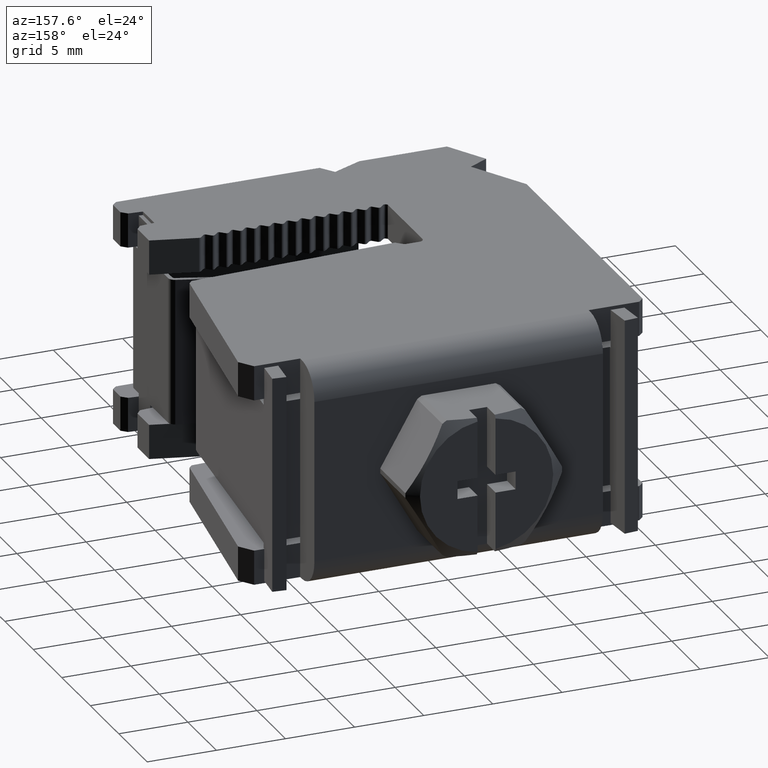
[diagram: clean part render]
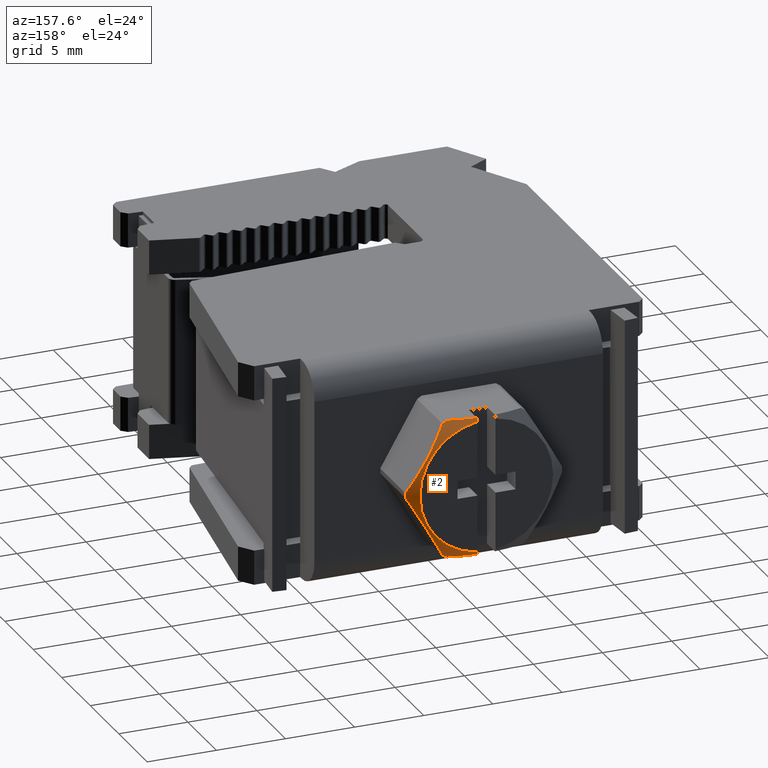
[diagram: same view with one face highlighted and labeled with its STEP entity id]
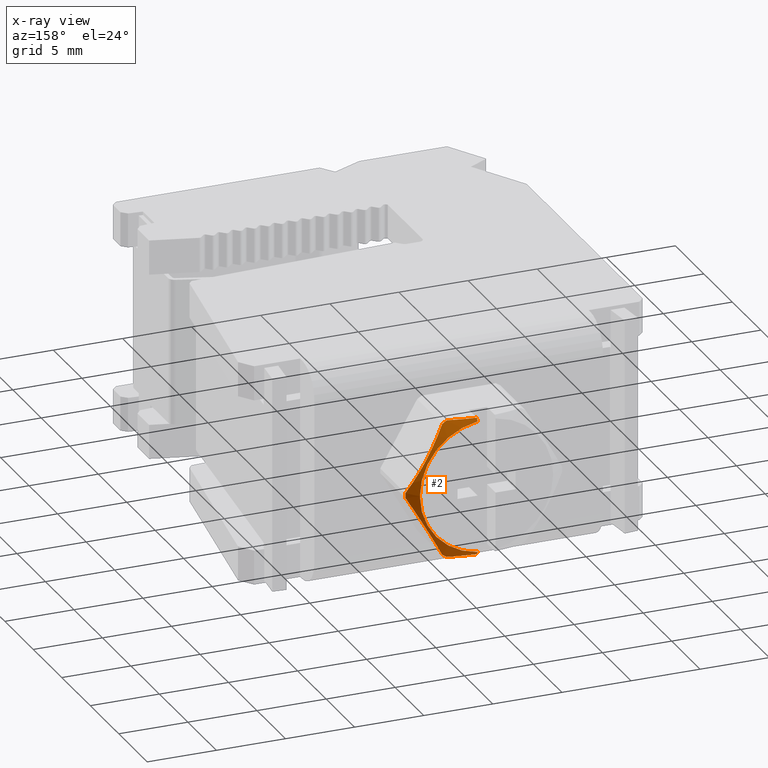
[diagram: x-ray of the same camera — body ghosted, the highlighted face saturated]
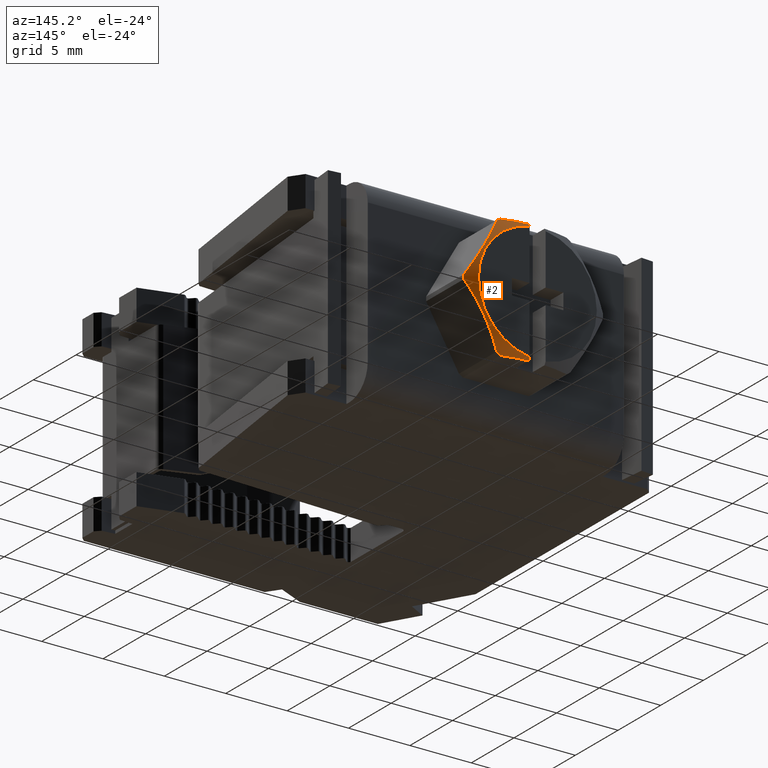
[diagram: same view with one face highlighted and labeled with its STEP entity id]
A machine part, auxiliary view. The second image highlights one B-rep face of the part: STEP entity #2.
The next image is the same camera in x-ray: the body ghosted, the highlighted face saturated — about 0% of this face is hidden behind the body in this view.
A second angle (auxiliary view) of the same face is appended — the face is thin or edge-on in the first view.
In plain terms, the highlighted conical surface has half-angle 60 deg.
Its self-contained STEP definition (entity closure, byte-faithful):
#2 = ADVANCED_FACE ( 'NONE', ( #4200 ), #11669, .T. ) ;
#153 = EDGE_LOOP ( 'NONE', ( #1387, #3100, #3068, #1368, #3059, #3069, #3086, #3087, #3089, #3061 ) ) ;
#763 = EDGE_CURVE ( 'NONE', #2423, #2459, #6142, .T. ) ;
#791 = EDGE_CURVE ( 'NONE', #2413, #2456, #5099, .T. ) ;
#795 = EDGE_CURVE ( 'NONE', #2442, #2453, #5090, .T. ) ;
#796 = EDGE_CURVE ( 'NONE', #2464, #2442, #5079, .T. ) ;
#812 = EDGE_CURVE ( 'NONE', #2458, #2464, #5091, .T. ) ;
#815 = EDGE_CURVE ( 'NONE', #2458, #2460, #5080, .T. ) ;
#817 = EDGE_CURVE ( 'NONE', #2439, #2456, #5070, .T. ) ;
#819 = EDGE_CURVE ( 'NONE', #2423, #2453, #5081, .T. ) ;
#836 = EDGE_CURVE ( 'NONE', #2439, #2460, #5071, .T. ) ;
#838 = EDGE_CURVE ( 'NONE', #2413, #2459, #5083, .T. ) ;
#1368 = ORIENTED_EDGE ( 'NONE', *, *, #819, .T. ) ;
#1387 = ORIENTED_EDGE ( 'NONE', *, *, #791, .F. ) ;
#2413 = VERTEX_POINT ( 'NONE', #9942 ) ;
#2423 = VERTEX_POINT ( 'NONE', #10029 ) ;
#2439 = VERTEX_POINT ( 'NONE', #10038 ) ;
#2442 = VERTEX_POINT ( 'NONE', #10047 ) ;
#2453 = VERTEX_POINT ( 'NONE', #10035 ) ;
#2456 = VERTEX_POINT ( 'NONE', #10048 ) ;
#2458 = VERTEX_POINT ( 'NONE', #10049 ) ;
#2459 = VERTEX_POINT ( 'NONE', #9996 ) ;
#2460 = VERTEX_POINT ( 'NONE', #10004 ) ;
#2464 = VERTEX_POINT ( 'NONE', #10023 ) ;
#3059 = ORIENTED_EDGE ( 'NONE', *, *, #795, .F. ) ;
#3061 = ORIENTED_EDGE ( 'NONE', *, *, #817, .T. ) ;
#3068 = ORIENTED_EDGE ( 'NONE', *, *, #763, .F. ) ;
#3069 = ORIENTED_EDGE ( 'NONE', *, *, #796, .F. ) ;
#3086 = ORIENTED_EDGE ( 'NONE', *, *, #812, .F. ) ;
#3087 = ORIENTED_EDGE ( 'NONE', *, *, #815, .T. ) ;
#3089 = ORIENTED_EDGE ( 'NONE', *, *, #836, .F. ) ;
#3100 = ORIENTED_EDGE ( 'NONE', *, *, #838, .T. ) ;
#4200 = FACE_OUTER_BOUND ( 'NONE', #153, .T. ) ;
#4202 = DIRECTION ( 'NONE',  ( 0.0000000000000000000, -1.000000000000000000, 0.0000000000000000000 ) ) ;
#4203 = DIRECTION ( 'NONE',  ( 0.0000000000000000000, 0.0000000000000000000, -1.000000000000000000 ) ) ;
#4214 = CARTESIAN_POINT ( 'NONE',  ( 9.156278230129213800, 34.17856228805035100, 4.000000000000000000 ) ) ;
#5070 = B_SPLINE_CURVE_WITH_KNOTS ( 'NONE', 3,
 ( #6489, #6524, #6521, #6518 ),
 .UNSPECIFIED., .F., .F.,
 ( 4, 4 ),
 ( 0.0004720852350455468500, 0.0008457056403085873800 ),
 .UNSPECIFIED. ) ;
#5071 = B_SPLINE_CURVE_WITH_KNOTS ( 'NONE', 3,
 ( #6589, #6575, #6605, #6602, #6608, #6591, #6586, #6610 ),
 .UNSPECIFIED., .F., .F.,
 ( 4, 2, 2, 4 ),
 ( 2.368400462398988200E-007, 0.002690857182375949500, 0.004036167353540804500, 0.005381477524705659100 ),
 .UNSPECIFIED. ) ;
#5079 = B_SPLINE_CURVE_WITH_KNOTS ( 'NONE', 3,
 ( #6425, #6413, #6424, #6457 ),
 .UNSPECIFIED., .F., .F.,
 ( 4, 4 ),
 ( 0.0004720852350454082300, 0.0008457056403081726800 ),
 .UNSPECIFIED. ) ;
#5080 = B_SPLINE_CURVE_WITH_KNOTS ( 'NONE', 3,
 ( #6473, #6468, #6474, #6485 ),
 .UNSPECIFIED., .F., .F.,
 ( 4, 4 ),
 ( 0.001007115244223461200, 0.001353052007906899700 ),
 .UNSPECIFIED. ) ;
#5081 = B_SPLINE_CURVE_WITH_KNOTS ( 'NONE', 3,
 ( #6525, #6527, #6517, #6526 ),
 .UNSPECIFIED., .F., .F.,
 ( 4, 4 ),
 ( 0.007563365489201823900, 0.007821063367713062800 ),
 .UNSPECIFIED. ) ;
#5083 = B_SPLINE_CURVE_WITH_KNOTS ( 'NONE', 3,
 ( #6576, #6614, #6573, #6565 ),
 .UNSPECIFIED., .F., .F.,
 ( 4, 4 ),
 ( 0.003033812660107502400, 0.003290458141622183200 ),
 .UNSPECIFIED. ) ;
#5090 = B_SPLINE_CURVE_WITH_KNOTS ( 'NONE', 3,
 ( #6454, #6435, #6436, #6442, #6412, #6456 ),
 .UNSPECIFIED., .F., .F.,
 ( 4, 2, 4 ),
 ( 0.002562873116990397200, 0.003593126373118931000, 0.004623379629247465300 ),
 .UNSPECIFIED. ) ;
#5091 = B_SPLINE_CURVE_WITH_KNOTS ( 'NONE', 3,
 ( #6498, #6469, #6481, #6492, #6484, #6493, #6499, #6477 ),
 .UNSPECIFIED., .F., .F.,
 ( 4, 2, 2, 4 ),
 ( 2.370046716015533700E-007, 0.002690901451450106800, 0.004036233674839359900, 0.005381565898228610000 ),
 .UNSPECIFIED. ) ;
#5099 = B_SPLINE_CURVE_WITH_KNOTS ( 'NONE', 3,
 ( #5422, #5483, #5757, #5934, #6007, #6081 ),
 .UNSPECIFIED., .F., .F.,
 ( 4, 2, 4 ),
 ( 0.008455981956408698300, 0.009488090573945062700, 0.01052019919148142700 ),
 .UNSPECIFIED. ) ;
#5319 = CARTESIAN_POINT ( 'NONE',  ( 9.156278230129213800, 34.72833341091205000, 4.000000000000000000 ) ) ;
#5327 = DIRECTION ( 'NONE',  ( 0.0000000000000000000, 0.0000000000000000000, 1.000000000000000000 ) ) ;
#5359 = DIRECTION ( 'NONE',  ( -0.0000000000000000000, 1.000000000000000000, -0.0000000000000000000 ) ) ;
#5422 = CARTESIAN_POINT ( 'NONE',  ( 9.806278230131585600, 34.60085342542714700, -1.000000000000004400 ) ) ;
#5483 = CARTESIAN_POINT ( 'NONE',  ( 10.15248559317183000, 34.57508547351293500, -1.000000000000004400 ) ) ;
#5757 = CARTESIAN_POINT ( 'NONE',  ( 10.49850009095062800, 34.52871222824312300, -1.000000000000004400 ) ) ;
#5934 = CARTESIAN_POINT ( 'NONE',  ( 11.17704383487720100, 34.40383708605986600, -1.000000000000004400 ) ) ;
#6007 = CARTESIAN_POINT ( 'NONE',  ( 11.51174243971749800, 34.32530651552849600, -1.000000000000004400 ) ) ;
#6081 = CARTESIAN_POINT ( 'NONE',  ( 11.84302957608024800, 34.23477123177539700, -1.000000000000004400 ) ) ;
#6139 = AXIS2_PLACEMENT_3D ( 'NONE', #5319, #5359, #5327 ) ;
#6142 = CIRCLE ( 'NONE', #6139, 4.821271174574592400 ) ;
#6412 = CARTESIAN_POINT ( 'NONE',  ( 10.15248559317484800, 34.57508547351257300, 9.000000000000005300 ) ) ;
#6413 = CARTESIAN_POINT ( 'NONE',  ( 12.05329816171763300, 34.24275045935223000, 8.866695058323339000 ) ) ;
#6424 = CARTESIAN_POINT ( 'NONE',  ( 11.94814163010119000, 34.23993652318895900, 8.933361627994502300 ) ) ;
#6425 = CARTESIAN_POINT ( 'NONE',  ( 12.15849962991555700, 34.24318877548523000, 8.800000000001080700 ) ) ;
#6435 = CARTESIAN_POINT ( 'NONE',  ( 11.51174243971807200, 34.32530651552832500, 9.000000000000005300 ) ) ;
#6436 = CARTESIAN_POINT ( 'NONE',  ( 11.17704383487836300, 34.40383708605959600, 9.000000000000007100 ) ) ;
#6442 = CARTESIAN_POINT ( 'NONE',  ( 10.49850009095300300, 34.52871222824273900, 9.000000000000003600 ) ) ;
#6454 = CARTESIAN_POINT ( 'NONE',  ( 11.84302957608024800, 34.23477123177539700, 9.000000000000005300 ) ) ;
#6456 = CARTESIAN_POINT ( 'NONE',  ( 9.806278230135193400, 34.60085342542692600, 9.000000000000005300 ) ) ;
#6457 = CARTESIAN_POINT ( 'NONE',  ( 11.84302957608024800, 34.23477123177539700, 9.000000000000005300 ) ) ;
#6468 = CARTESIAN_POINT ( 'NONE',  ( 14.82978092202602800, 34.23680385272118100, 4.057830549389827900 ) ) ;
#6469 = CARTESIAN_POINT ( 'NONE',  ( 14.39281131825582900, 34.47360433289294700, 4.930058635850705300 ) ) ;
#6473 = CARTESIAN_POINT ( 'NONE',  ( 14.82978092202602800, 34.23477123177583800, 4.173205080757465900 ) ) ;
#6474 = CARTESIAN_POINT ( 'NONE',  ( 14.82978092202602800, 34.23680551348585500, 3.942263718036817200 ) ) ;
#6477 = CARTESIAN_POINT ( 'NONE',  ( 12.15849962991555700, 34.24318877548523000, 8.800000000001080700 ) ) ;
#6481 = CARTESIAN_POINT ( 'NONE',  ( 13.95020117849294800, 34.62260978525915800, 5.696681885865166000 ) ) ;
#6484 = CARTESIAN_POINT ( 'NONE',  ( 13.04497542681491500, 34.59109986401028900, 7.264578880091251600 ) ) ;
#6485 = CARTESIAN_POINT ( 'NONE',  ( 14.82978092202602800, 34.23477123177583800, 3.826794919242256600 ) ) ;
#6489 = CARTESIAN_POINT ( 'NONE',  ( 12.15849962991577900, 34.24318877548523000, -0.8000000000009145400 ) ) ;
#6492 = CARTESIAN_POINT ( 'NONE',  ( 13.27248684524535000, 34.62636175097388500, 6.870517544067672200 ) ) ;
#6493 = CARTESIAN_POINT ( 'NONE',  ( 12.59835597893397900, 34.45857893065417700, 8.038146455469382400 ) ) ;
#6498 = CARTESIAN_POINT ( 'NONE',  ( 14.82978092202602800, 34.23477123177583800, 4.173205080757465900 ) ) ;
#6499 = CARTESIAN_POINT ( 'NONE',  ( 12.37753430938433200, 34.36183197614158800, 8.420620806541558400 ) ) ;
#6517 = CARTESIAN_POINT ( 'NONE',  ( 9.806278230135193400, 34.64335915048135200, 8.925758424478146900 ) ) ;
#6518 = CARTESIAN_POINT ( 'NONE',  ( 11.84302957608024800, 34.23477123177539700, -1.000000000000004400 ) ) ;
#6521 = CARTESIAN_POINT ( 'NONE',  ( 11.94814163010126500, 34.23993652318896600, -0.9333616279944473300 ) ) ;
#6524 = CARTESIAN_POINT ( 'NONE',  ( 12.05329816171778400, 34.24275045935224400, -0.8666950583232315700 ) ) ;
#6525 = CARTESIAN_POINT ( 'NONE',  ( 9.806278230135193400, 34.72833341091160300, 8.777253995632262800 ) ) ;
#6526 = CARTESIAN_POINT ( 'NONE',  ( 9.806278230135193400, 34.60085342542692600, 9.000000000000005300 ) ) ;
#6527 = CARTESIAN_POINT ( 'NONE',  ( 9.806278230135193400, 34.68585304924081200, 8.851510082628257300 ) ) ;
#6565 = CARTESIAN_POINT ( 'NONE',  ( 9.806278230131585600, 34.72833341091160300, -0.7772539956327588800 ) ) ;
#6573 = CARTESIAN_POINT ( 'NONE',  ( 9.806278230131585600, 34.68585304364147200, -0.8515100924164548100 ) ) ;
#6575 = CARTESIAN_POINT ( 'NONE',  ( 12.59576579281292800, 34.48004011441807400, -0.04263278943237182300 ) ) ;
#6576 = CARTESIAN_POINT ( 'NONE',  ( 9.806278230131585600, 34.60085342542714700, -1.000000000000004400 ) ) ;
#6586 = CARTESIAN_POINT ( 'NONE',  ( 14.61089160180431400, 34.35440887864841400, 3.447667495384024500 ) ) ;
#6589 = CARTESIAN_POINT ( 'NONE',  ( 12.15849962991577900, 34.24318877548523000, -0.8000000000009145400 ) ) ;
#6591 = CARTESIAN_POINT ( 'NONE',  ( 14.39020445905374900, 34.45238092701183100, 3.065426151562843100 ) ) ;
#6602 = CARTESIAN_POINT ( 'NONE',  ( 13.71639215172713300, 34.62471682290949800, 1.898349000507941500 ) ) ;
#6605 = CARTESIAN_POINT ( 'NONE',  ( 13.03861088687331100, 34.62598776137956900, 0.7243974133628371400 ) ) ;
#6608 = CARTESIAN_POINT ( 'NONE',  ( 13.94380618993144300, 34.58778088753687300, 2.292241669032212000 ) ) ;
#6610 = CARTESIAN_POINT ( 'NONE',  ( 14.82978092202602800, 34.23477123177583800, 3.826794919242256600 ) ) ;
#6614 = CARTESIAN_POINT ( 'NONE',  ( 9.806278230131585600, 34.64335914512516000, -0.9257584338338948900 ) ) ;
#9942 = CARTESIAN_POINT ( 'NONE',  ( 9.806278230131585600, 34.60085342542714700, -1.000000000000004400 ) ) ;
#9996 = CARTESIAN_POINT ( 'NONE',  ( 9.806278230131585600, 34.72833341091160300, -0.7772539956327588800 ) ) ;
#10004 = CARTESIAN_POINT ( 'NONE',  ( 14.82978092202602800, 34.23477123177583800, 3.826794919242256600 ) ) ;
#10023 = CARTESIAN_POINT ( 'NONE',  ( 12.15849962991555700, 34.24318877548523000, 8.800000000001080700 ) ) ;
#10029 = CARTESIAN_POINT ( 'NONE',  ( 9.806278230135193400, 34.72833341091160300, 8.777253995632262800 ) ) ;
#10035 = CARTESIAN_POINT ( 'NONE',  ( 9.806278230135193400, 34.60085342542692600, 9.000000000000005300 ) ) ;
#10038 = CARTESIAN_POINT ( 'NONE',  ( 12.15849962991577900, 34.24318877548523000, -0.8000000000009145400 ) ) ;
#10047 = CARTESIAN_POINT ( 'NONE',  ( 11.84302957608024800, 34.23477123177539700, 9.000000000000005300 ) ) ;
#10048 = CARTESIAN_POINT ( 'NONE',  ( 11.84302957608024800, 34.23477123177539700, -1.000000000000004400 ) ) ;
#10049 = CARTESIAN_POINT ( 'NONE',  ( 14.82978092202602800, 34.23477123177583800, 4.173205080757465900 ) ) ;
#11669 = CONICAL_SURFACE ( 'NONE', #11682, 5.773502691902660200, 1.047197551195378800 ) ;
#11682 = AXIS2_PLACEMENT_3D ( 'NONE', #4214, #4202, #4203 ) ;